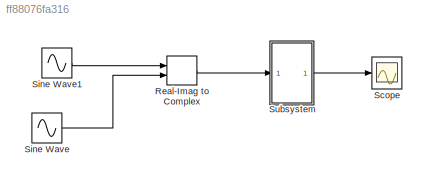
MODEL slx_ff88076fa316
KIND model
CONFIG AbsTol = auto
CONFIG FixedStep = auto
CONFIG MaxStep = auto
CONFIG MinStep = auto
CONFIG RelTol = 1e-3
CONFIG SampleTimeConstraint = Unconstrained
CONFIG Solver = FixedStepAuto
CONFIG SolverMode = Auto
CONFIG SolverName = FixedStepAuto
CONFIG StartTime = 0.0
CONFIG StopTime = 1e-5
BLOCK [RealImagToComplex] Real-Imag to Complex
  Ports = [2, 1]
BLOCK [Scope] Scope
  Ports = [1]
  ScopeSpecificationString = Simulink.scopes.TimeScopeBlockCfg('CurrentConfiguration', extmgr.ConfigurationSet(extmgr.Configuration('Core','General UI',true),extmgr.Configuration('Core','Source UI',true),extmgr.Configuration('Sources','WiredSimulink',true),extmgr.Configuration('Visuals','Time Domain',true,'SerializedDisplays',{struct('MinYLimReal','-1.24951','MaxYLimReal','1.24995','YLabelReal','','MinYLimMag','0.00000','MaxY...<+1422ch>
BLOCK [Sin] Sine Wave
  Frequency = 1e6
  Ports = [0, 1]
  SampleTime = 0
BLOCK [Sin] Sine Wave1
  Frequency = 1e6
  Phase = pi/2
  Ports = [0, 1]
  SampleTime = 0
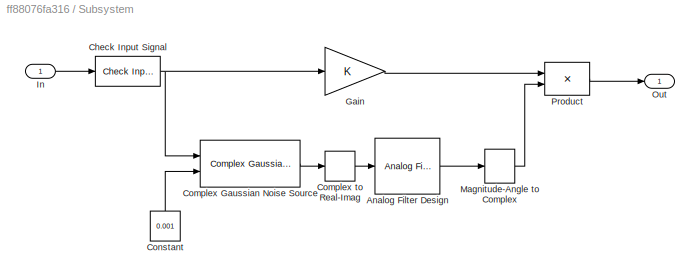
BLOCK [SubSystem] Subsystem
  Ports = [1, 1]
  RequestExecContextInheritance = off
  Variant = off
BLOCK [Reference] Subsystem/Analog Filter Design  REF=dsparch4/Analog
Filter Design
  Ports = [1, 1]
  SourceBlock = dsparch4/Analog\nFilter Design
  SourceType = Analog Filter Design
BLOCK [Reference] Subsystem/Check Input Signal  REF=rfmathmodels1/Mixer/Check
Input Signal
  Ports = [1, 1]
  SourceBlock = rfmathmodels1/Mixer/Check\nInput Signal
BLOCK [Reference] Subsystem/Complex Gaussian Noise Source  REF=rfprivate1/Complex Gaussian
Noise Source
  Ports = [2, 1]
  SourceBlock = rfprivate1/Complex Gaussian\nNoise Source
  SourceType = Complex Gaussian Noise Source
BLOCK [ComplexToRealImag] Subsystem/Complex to Real-Imag
  Output = Real
  Ports = [1, 1]
BLOCK [Constant] Subsystem/Constant
  SampleTime = Inf
  Value = 0.001
BLOCK [Gain] Subsystem/Gain
BLOCK [Inport] Subsystem/In
  IconDisplay = Port number
BLOCK [MagnitudeAngleToComplex] Subsystem/Magnitude-Angle to Complex
  ConstantPart = 1
  Input = Angle
  Ports = [1, 1]
BLOCK [Outport] Subsystem/Out
  IconDisplay = Port number
BLOCK [Product] Subsystem/Product
  Ports = [2, 1]
  RndMeth = Floor
LINE Real-Imag to Complex:1 -> Subsystem:1
LINE Sine Wave1:1 -> Real-Imag to Complex:1
LINE Sine Wave:1 -> Real-Imag to Complex:2
LINE Subsystem/Analog Filter Design:1 -> Subsystem/Magnitude-Angle to Complex:1
NET Subsystem/Check Input Signal:1 -> Subsystem/Complex Gaussian Noise Source:1, Subsystem/Gain:1
LINE Subsystem/Complex Gaussian Noise Source:1 -> Subsystem/Complex to Real-Imag:1
LINE Subsystem/Complex to Real-Imag:1 -> Subsystem/Analog Filter Design:1
LINE Subsystem/Constant:1 -> Subsystem/Complex Gaussian Noise Source:2
LINE Subsystem/Gain:1 -> Subsystem/Product:1
LINE Subsystem/In:1 -> Subsystem/Check Input Signal:1
LINE Subsystem/Magnitude-Angle to Complex:1 -> Subsystem/Product:2
LINE Subsystem/Product:1 -> Subsystem/Out:1
LINE Subsystem:1 -> Scope:1
note: NET lines group one-source signal fan-out (src -> all destinations, sorted); 1:1 wires keep LINE
